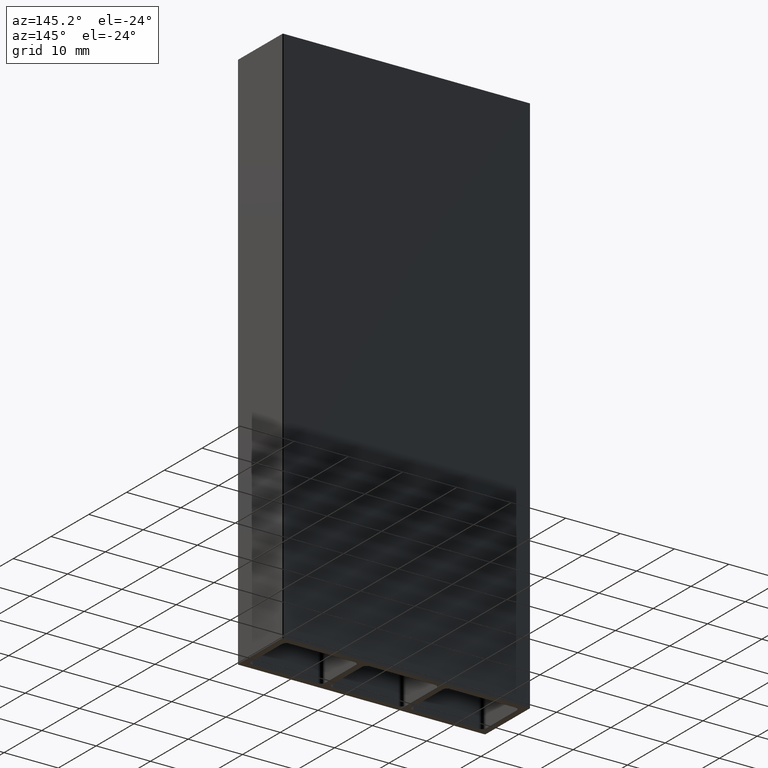
[diagram: clean part render]
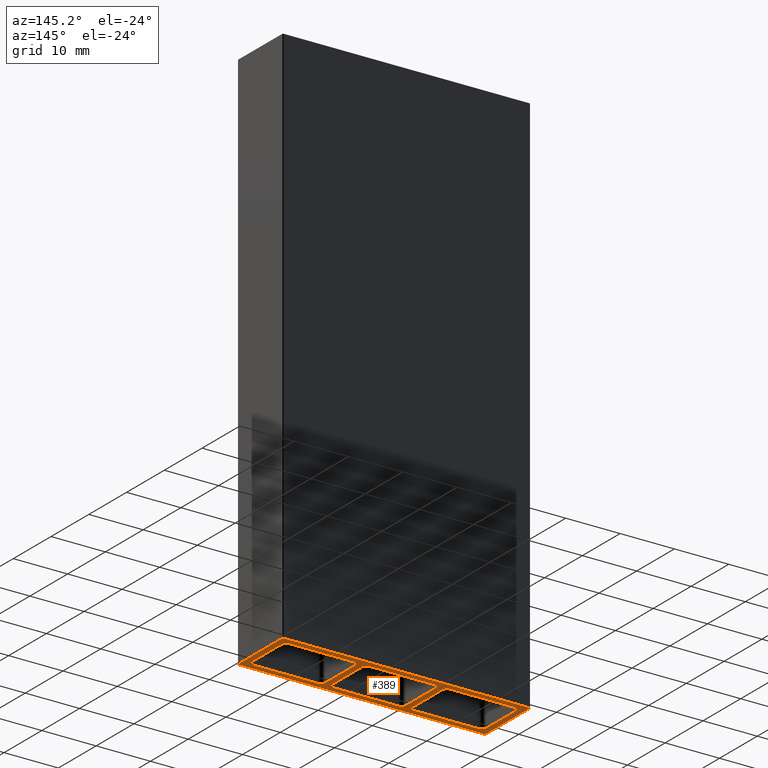
[diagram: same view with one face highlighted and labeled with its STEP entity id]
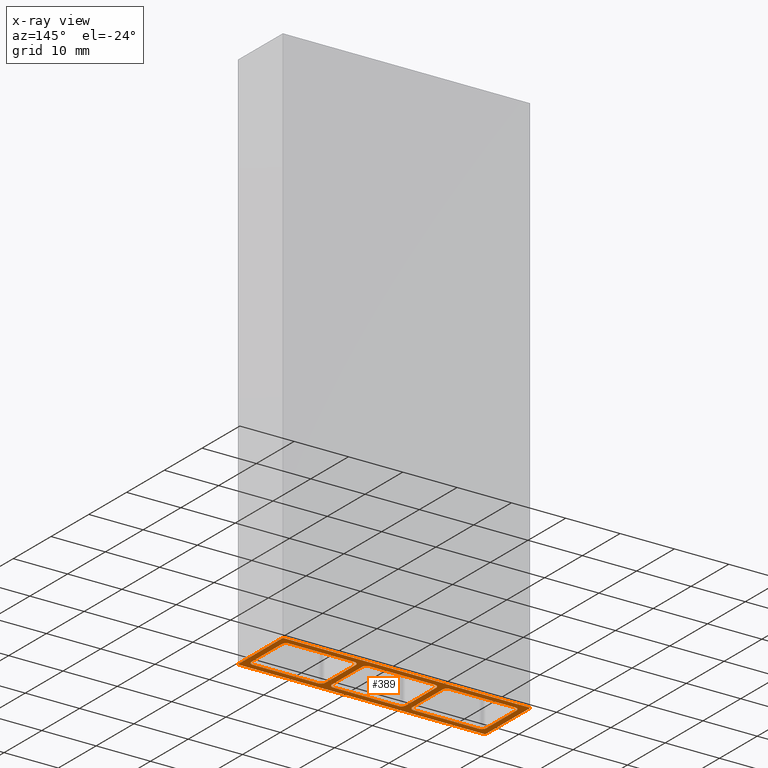
[diagram: x-ray of the same camera — body ghosted, the highlighted face saturated]
A machine part, auxiliary view. The second image highlights one B-rep face of the part: STEP entity #389.
The next image is the same camera in x-ray: the body ghosted, the highlighted face saturated — about 0% of this face is hidden behind the body in this view.
In plain terms, the highlighted planar face has unit normal (-0, 0, 1).
Its self-contained STEP definition (entity closure, byte-faithful):
#3 = LINE ( 'NONE', #851, #147 ) ;
#7 = ORIENTED_EDGE ( 'NONE', *, *, #16, .T. ) ;
#8 = CARTESIAN_POINT ( 'NONE',  ( -6.800000000000000700, 3.999999999999994200, -50.00000000000000000 ) ) ;
#10 = CARTESIAN_POINT ( 'NONE',  ( 7.999999999999998200, -3.999999999999995600, -50.00000000000000000 ) ) ;
#14 = ORIENTED_EDGE ( 'NONE', *, *, #394, .T. ) ;
#16 = EDGE_CURVE ( 'NONE', #585, #572, #796, .T. ) ;
#30 = EDGE_CURVE ( 'NONE', #348, #1021, #112, .T. ) ;
#44 = DIRECTION ( 'NONE',  ( -1.000000000000000000, 0.0000000000000000000, 0.0000000000000000000 ) ) ;
#47 = VERTEX_POINT ( 'NONE', #1048 ) ;
#53 = EDGE_CURVE ( 'NONE', #1042, #278, #709, .T. ) ;
#59 = AXIS2_PLACEMENT_3D ( 'NONE', #687, #124, #774 ) ;
#68 = EDGE_CURVE ( 'NONE', #1021, #1107, #211, .T. ) ;
#72 = DIRECTION ( 'NONE',  ( 1.000000000000000000, 0.0000000000000000000, 0.0000000000000000000 ) ) ;
#73 = VERTEX_POINT ( 'NONE', #254 ) ;
#74 = DIRECTION ( 'NONE',  ( 0.0000000000000000000, 0.0000000000000000000, 1.000000000000000000 ) ) ;
#76 = EDGE_CURVE ( 'NONE', #801, #47, #1047, .T. ) ;
#78 = ORIENTED_EDGE ( 'NONE', *, *, #696, .T. ) ;
#80 = DIRECTION ( 'NONE',  ( -0.0000000000000000000, 1.000000000000000000, -0.0000000000000000000 ) ) ;
#82 = VECTOR ( 'NONE', #1153, 1000.000000000000000 ) ;
#94 = PLANE ( 'NONE',  #673 ) ;
#98 = CARTESIAN_POINT ( 'NONE',  ( 6.800000000000000700, 3.999999999999994200, -50.00000000000000000 ) ) ;
#100 = CIRCLE ( 'NONE', #744, 0.8000000000000020400 ) ;
#104 = CARTESIAN_POINT ( 'NONE',  ( 8.000000000000000000, 3.999999999999994200, -50.00000000000000000 ) ) ;
#106 = EDGE_LOOP ( 'NONE', ( #78, #1101, #1002, #154, #1035, #508, #859, #1044 ) ) ;
#112 = CIRCLE ( 'NONE', #386, 0.8000000000000003800 ) ;
#116 = ORIENTED_EDGE ( 'NONE', *, *, #30, .T. ) ;
#120 = ORIENTED_EDGE ( 'NONE', *, *, #443, .T. ) ;
#124 = DIRECTION ( 'NONE',  ( 0.0000000000000000000, 0.0000000000000000000, 1.000000000000000000 ) ) ;
#125 = CIRCLE ( 'NONE', #310, 0.7999999999999951600 ) ;
#129 = ORIENTED_EDGE ( 'NONE', *, *, #149, .T. ) ;
#135 = EDGE_CURVE ( 'NONE', #957, #241, #374, .T. ) ;
#145 = VECTOR ( 'NONE', #915, 1000.000000000000000 ) ;
#146 = DIRECTION ( 'NONE',  ( 1.000000000000000000, 0.0000000000000000000, 0.0000000000000000000 ) ) ;
#147 = VECTOR ( 'NONE', #1015, 1000.000000000000000 ) ;
#148 = VECTOR ( 'NONE', #777, 1000.000000000000000 ) ;
#149 = EDGE_CURVE ( 'NONE', #1075, #514, #647, .T. ) ;
#154 = ORIENTED_EDGE ( 'NONE', *, *, #1031, .T. ) ;
#158 = CARTESIAN_POINT ( 'NONE',  ( 6.000000000000000000, 3.999999999999999100, -50.00000000000000000 ) ) ;
#159 = VERTEX_POINT ( 'NONE', #1122 ) ;
#161 = VERTEX_POINT ( 'NONE', #10 ) ;
#172 = EDGE_CURVE ( 'NONE', #1075, #399, #691, .T. ) ;
#184 = ORIENTED_EDGE ( 'NONE', *, *, #342, .T. ) ;
#186 = CARTESIAN_POINT ( 'NONE',  ( 35.59999999999999400, 4.799999999999999800, -50.00000000000000000 ) ) ;
#187 = DIRECTION ( 'NONE',  ( -1.000000000000000000, 0.0000000000000000000, 0.0000000000000000000 ) ) ;
#191 = DIRECTION ( 'NONE',  ( 1.000000000000000000, 0.0000000000000000000, 0.0000000000000000000 ) ) ;
#197 = CARTESIAN_POINT ( 'NONE',  ( -7.800000000000001600, -5.800000000000001600, -50.00000000000000000 ) ) ;
#211 = LINE ( 'NONE', #721, #145 ) ;
#219 = VECTOR ( 'NONE', #565, 1000.000000000000000 ) ;
#224 = DIRECTION ( 'NONE',  ( 0.0000000000000000000, 0.0000000000000000000, 1.000000000000000000 ) ) ;
#232 = CARTESIAN_POINT ( 'NONE',  ( 6.800000000000000700, 3.999999999999994200, -50.00000000000000000 ) ) ;
#233 = DIRECTION ( 'NONE',  ( 1.445602896647339200E-016, -1.000000000000000000, 0.0000000000000000000 ) ) ;
#235 = VERTEX_POINT ( 'NONE', #1142 ) ;
#241 = VERTEX_POINT ( 'NONE', #471 ) ;
#242 = CARTESIAN_POINT ( 'NONE',  ( 22.80000000000000100, 3.999999999999994200, -50.00000000000000000 ) ) ;
#245 = AXIS2_PLACEMENT_3D ( 'NONE', #513, #1151, #339 ) ;
#247 = CIRCLE ( 'NONE', #604, 0.1999999999999996500 ) ;
#254 = CARTESIAN_POINT ( 'NONE',  ( -7.800000000000000700, 5.999999999999999100, -50.00000000000000000 ) ) ;
#257 = CARTESIAN_POINT ( 'NONE',  ( 36.39999999999999900, 3.999999999999994200, -50.00000000000000000 ) ) ;
#258 = CARTESIAN_POINT ( 'NONE',  ( 5.999999999999996400, -4.800000000000001600, -50.00000000000000000 ) ) ;
#262 = DIRECTION ( 'NONE',  ( 1.000000000000000000, 0.0000000000000000000, 0.0000000000000000000 ) ) ;
#266 = VERTEX_POINT ( 'NONE', #273 ) ;
#269 = ORIENTED_EDGE ( 'NONE', *, *, #306, .T. ) ;
#273 = CARTESIAN_POINT ( 'NONE',  ( 36.39999999999999900, 3.999999999999994200, -50.00000000000000000 ) ) ;
#278 = VERTEX_POINT ( 'NONE', #466 ) ;
#285 = CARTESIAN_POINT ( 'NONE',  ( -5.999999999999998200, -4.000000000000000900, -50.00000000000000000 ) ) ;
#286 = CIRCLE ( 'NONE', #59, 0.8000000000000020400 ) ;
#290 = DIRECTION ( 'NONE',  ( 0.0000000000000000000, -0.0000000000000000000, -1.000000000000000000 ) ) ;
#295 = DIRECTION ( 'NONE',  ( -1.000000000000000000, 0.0000000000000000000, 0.0000000000000000000 ) ) ;
#298 = VERTEX_POINT ( 'NONE', #258 ) ;
#306 = EDGE_CURVE ( 'NONE', #235, #1042, #393, .T. ) ;
#309 = CIRCLE ( 'NONE', #797, 0.8000000000000020400 ) ;
#310 = AXIS2_PLACEMENT_3D ( 'NONE', #323, #817, #498 ) ;
#312 = LINE ( 'NONE', #606, #979 ) ;
#314 = VERTEX_POINT ( 'NONE', #1026 ) ;
#323 = CARTESIAN_POINT ( 'NONE',  ( 35.60000000000000900, -4.000000000000000900, -50.00000000000000000 ) ) ;
#327 = CARTESIAN_POINT ( 'NONE',  ( 22.80000000000000100, 3.999999999999994200, -50.00000000000000000 ) ) ;
#330 = LINE ( 'NONE', #439, #843 ) ;
#336 = AXIS2_PLACEMENT_3D ( 'NONE', #496, #1043, #1085 ) ;
#339 = DIRECTION ( 'NONE',  ( -1.000000000000000000, 0.0000000000000000000, 0.0000000000000000000 ) ) ;
#342 = EDGE_CURVE ( 'NONE', #957, #399, #601, .T. ) ;
#345 = EDGE_CURVE ( 'NONE', #1055, #911, #330, .T. ) ;
#346 = CIRCLE ( 'NONE', #619, 0.8000000000000003800 ) ;
#348 = VERTEX_POINT ( 'NONE', #1125 ) ;
#351 = DIRECTION ( 'NONE',  ( 1.000000000000000000, 0.0000000000000000000, 0.0000000000000000000 ) ) ;
#355 = ORIENTED_EDGE ( 'NONE', *, *, #904, .T. ) ;
#357 = EDGE_LOOP ( 'NONE', ( #116, #573, #1170, #120, #767, #269, #943, #1192 ) ) ;
#360 = CARTESIAN_POINT ( 'NONE',  ( 37.40000000000000600, 5.999999999999999100, -50.00000000000000000 ) ) ;
#368 = DIRECTION ( 'NONE',  ( 1.000000000000000000, 0.0000000000000000000, 0.0000000000000000000 ) ) ;
#370 = DIRECTION ( 'NONE',  ( -2.168404344971011600E-016, 1.000000000000000000, -0.0000000000000000000 ) ) ;
#373 = VECTOR ( 'NONE', #80, 1000.000000000000000 ) ;
#374 = LINE ( 'NONE', #998, #373 ) ;
#375 = CARTESIAN_POINT ( 'NONE',  ( -7.800000000000001600, -6.000000000000000900, -50.00000000000000000 ) ) ;
#386 = AXIS2_PLACEMENT_3D ( 'NONE', #536, #1179, #72 ) ;
#389 = ADVANCED_FACE ( 'NONE', ( #782, #616, #967, #806 ), #94, .F. ) ;
#391 = EDGE_CURVE ( 'NONE', #1029, #73, #247, .T. ) ;
#393 = LINE ( 'NONE', #232, #1146 ) ;
#394 = EDGE_CURVE ( 'NONE', #424, #266, #555, .T. ) ;
#399 = VERTEX_POINT ( 'NONE', #663 ) ;
#401 = AXIS2_PLACEMENT_3D ( 'NONE', #451, #534, #725 ) ;
#406 = CARTESIAN_POINT ( 'NONE',  ( 21.60000000000000100, 3.999999999999994200, -50.00000000000000000 ) ) ;
#410 = EDGE_CURVE ( 'NONE', #266, #1055, #309, .T. ) ;
#420 = CIRCLE ( 'NONE', #582, 0.8000000000000020400 ) ;
#424 = VERTEX_POINT ( 'NONE', #962 ) ;
#439 = CARTESIAN_POINT ( 'NONE',  ( 23.60000000000000500, 4.799999999999999800, -50.00000000000000000 ) ) ;
#443 = EDGE_CURVE ( 'NONE', #637, #298, #3, .T. ) ;
#446 = EDGE_CURVE ( 'NONE', #1107, #637, #963, .T. ) ;
#449 = ORIENTED_EDGE ( 'NONE', *, *, #657, .T. ) ;
#450 = EDGE_CURVE ( 'NONE', #161, #1201, #842, .T. ) ;
#451 = CARTESIAN_POINT ( 'NONE',  ( 23.60000000000000100, -4.000000000000000900, -50.00000000000000000 ) ) ;
#463 = VERTEX_POINT ( 'NONE', #650 ) ;
#466 = CARTESIAN_POINT ( 'NONE',  ( 5.999999999999994700, 4.799999999999999800, -50.00000000000000000 ) ) ;
#467 = DIRECTION ( 'NONE',  ( -0.0000000000000000000, 0.0000000000000000000, 1.000000000000000000 ) ) ;
#471 = CARTESIAN_POINT ( 'NONE',  ( 37.60000000000000100, 5.799999999999999800, -50.00000000000000000 ) ) ;
#473 = EDGE_CURVE ( 'NONE', #853, #73, #312, .T. ) ;
#477 = CARTESIAN_POINT ( 'NONE',  ( 23.60000000000000900, -4.800000000000001600, -50.00000000000000000 ) ) ;
#480 = DIRECTION ( 'NONE',  ( 1.000000000000000000, 0.0000000000000000000, 0.0000000000000000000 ) ) ;
#485 = CARTESIAN_POINT ( 'NONE',  ( 8.799999999999998900, -4.000000000000000900, -50.00000000000000000 ) ) ;
#496 = CARTESIAN_POINT ( 'NONE',  ( 37.40000000000000600, 5.799999999999999800, -50.00000000000000000 ) ) ;
#498 = DIRECTION ( 'NONE',  ( -1.000000000000000000, 0.0000000000000000000, 0.0000000000000000000 ) ) ;
#499 = VECTOR ( 'NONE', #780, 1000.000000000000000 ) ;
#505 = AXIS2_PLACEMENT_3D ( 'NONE', #158, #818, #187 ) ;
#508 = ORIENTED_EDGE ( 'NONE', *, *, #632, .T. ) ;
#510 = EDGE_CURVE ( 'NONE', #885, #1058, #1198, .T. ) ;
#513 = CARTESIAN_POINT ( 'NONE',  ( 6.000000000000001800, -4.000000000000000900, -50.00000000000000000 ) ) ;
#514 = VERTEX_POINT ( 'NONE', #750 ) ;
#534 = DIRECTION ( 'NONE',  ( 0.0000000000000000000, 0.0000000000000000000, 1.000000000000000000 ) ) ;
#535 = LINE ( 'NONE', #905, #1020 ) ;
#536 = CARTESIAN_POINT ( 'NONE',  ( -6.000000000000000000, 4.000000000000000000, -50.00000000000000000 ) ) ;
#552 = ORIENTED_EDGE ( 'NONE', *, *, #172, .F. ) ;
#555 = LINE ( 'NONE', #257, #499 ) ;
#565 = DIRECTION ( 'NONE',  ( 1.000000000000000000, 0.0000000000000000000, 0.0000000000000000000 ) ) ;
#569 = DIRECTION ( 'NONE',  ( 0.0000000000000000000, 0.0000000000000000000, 1.000000000000000000 ) ) ;
#570 = AXIS2_PLACEMENT_3D ( 'NONE', #197, #728, #785 ) ;
#572 = VERTEX_POINT ( 'NONE', #968 ) ;
#573 = ORIENTED_EDGE ( 'NONE', *, *, #68, .T. ) ;
#578 = ORIENTED_EDGE ( 'NONE', *, *, #761, .T. ) ;
#582 = AXIS2_PLACEMENT_3D ( 'NONE', #790, #224, #597 ) ;
#585 = VERTEX_POINT ( 'NONE', #242 ) ;
#597 = DIRECTION ( 'NONE',  ( -1.000000000000000000, 0.0000000000000000000, 0.0000000000000000000 ) ) ;
#601 = CIRCLE ( 'NONE', #1185, 0.1999999999999987900 ) ;
#604 = AXIS2_PLACEMENT_3D ( 'NONE', #982, #820, #351 ) ;
#606 = CARTESIAN_POINT ( 'NONE',  ( -8.000000000000000000, 5.999999999999999100, -50.00000000000000000 ) ) ;
#616 = FACE_OUTER_BOUND ( 'NONE', #883, .T. ) ;
#619 = AXIS2_PLACEMENT_3D ( 'NONE', #930, #946, #368 ) ;
#621 = DIRECTION ( 'NONE',  ( -1.000000000000000000, -0.0000000000000000000, -0.0000000000000000000 ) ) ;
#622 = ORIENTED_EDGE ( 'NONE', *, *, #653, .T. ) ;
#632 = EDGE_CURVE ( 'NONE', #1201, #1143, #812, .T. ) ;
#634 = CARTESIAN_POINT ( 'NONE',  ( -5.999999999999992900, -4.800000000000001600, -50.00000000000000000 ) ) ;
#637 = VERTEX_POINT ( 'NONE', #634 ) ;
#638 = CARTESIAN_POINT ( 'NONE',  ( 20.79999999999999700, 4.799999999999999800, -50.00000000000000000 ) ) ;
#647 = CIRCLE ( 'NONE', #570, 0.1999999999999996500 ) ;
#648 = CARTESIAN_POINT ( 'NONE',  ( -6.799999999999998900, -3.999999999999995600, -50.00000000000000000 ) ) ;
#650 = CARTESIAN_POINT ( 'NONE',  ( 20.79999999999999700, 4.799999999999999800, -50.00000000000000000 ) ) ;
#652 = CARTESIAN_POINT ( 'NONE',  ( 23.60000000000000900, -4.800000000000001600, -50.00000000000000000 ) ) ;
#653 = EDGE_CURVE ( 'NONE', #572, #801, #1147, .T. ) ;
#657 = EDGE_CURVE ( 'NONE', #853, #241, #749, .T. ) ;
#663 = CARTESIAN_POINT ( 'NONE',  ( 37.40000000000000600, -6.000000000000000900, -50.00000000000000000 ) ) ;
#673 = AXIS2_PLACEMENT_3D ( 'NONE', #926, #467, #146 ) ;
#687 = CARTESIAN_POINT ( 'NONE',  ( 23.60000000000000100, 4.000000000000000000, -50.00000000000000000 ) ) ;
#691 = LINE ( 'NONE', #1009, #219 ) ;
#696 = EDGE_CURVE ( 'NONE', #1058, #463, #420, .T. ) ;
#709 = CIRCLE ( 'NONE', #505, 0.8000000000000003800 ) ;
#721 = CARTESIAN_POINT ( 'NONE',  ( -6.800000000000000700, 3.999999999999994200, -50.00000000000000000 ) ) ;
#725 = DIRECTION ( 'NONE',  ( -1.000000000000000000, 0.0000000000000000000, 0.0000000000000000000 ) ) ;
#728 = DIRECTION ( 'NONE',  ( 0.0000000000000000000, -0.0000000000000000000, -1.000000000000000000 ) ) ;
#729 = AXIS2_PLACEMENT_3D ( 'NONE', #285, #1165, #44 ) ;
#731 = CARTESIAN_POINT ( 'NONE',  ( 20.79999999999999400, -4.800000000000001600, -50.00000000000000000 ) ) ;
#735 = CIRCLE ( 'NONE', #245, 0.8000000000000003800 ) ;
#740 = EDGE_LOOP ( 'NONE', ( #578, #7, #622, #878, #355, #14, #802, #997 ) ) ;
#742 = CARTESIAN_POINT ( 'NONE',  ( 37.40000000000000600, -5.800000000000002500, -50.00000000000000000 ) ) ;
#743 = CARTESIAN_POINT ( 'NONE',  ( 21.60000000000000100, 3.999999999999994200, -50.00000000000000000 ) ) ;
#744 = AXIS2_PLACEMENT_3D ( 'NONE', #1124, #569, #480 ) ;
#749 = CIRCLE ( 'NONE', #336, 0.1999999999999987900 ) ;
#750 = CARTESIAN_POINT ( 'NONE',  ( -7.999999999999998200, -5.800000000000002500, -50.00000000000000000 ) ) ;
#756 = DIRECTION ( 'NONE',  ( -1.000000000000000000, 0.0000000000000000000, 0.0000000000000000000 ) ) ;
#761 = EDGE_CURVE ( 'NONE', #911, #585, #286, .T. ) ;
#767 = ORIENTED_EDGE ( 'NONE', *, *, #783, .T. ) ;
#774 = DIRECTION ( 'NONE',  ( 1.000000000000000000, 0.0000000000000000000, 0.0000000000000000000 ) ) ;
#776 = VECTOR ( 'NONE', #1144, 1000.000000000000000 ) ;
#777 = DIRECTION ( 'NONE',  ( 1.000000000000000000, 0.0000000000000000000, 0.0000000000000000000 ) ) ;
#780 = DIRECTION ( 'NONE',  ( -0.0000000000000000000, 1.000000000000000000, -0.0000000000000000000 ) ) ;
#782 = FACE_BOUND ( 'NONE', #106, .T. ) ;
#783 = EDGE_CURVE ( 'NONE', #298, #235, #735, .T. ) ;
#785 = DIRECTION ( 'NONE',  ( 1.000000000000000000, 0.0000000000000000000, 0.0000000000000000000 ) ) ;
#789 = ORIENTED_EDGE ( 'NONE', *, *, #135, .F. ) ;
#790 = CARTESIAN_POINT ( 'NONE',  ( 20.80000000000000100, 4.000000000000000000, -50.00000000000000000 ) ) ;
#796 = LINE ( 'NONE', #327, #82 ) ;
#797 = AXIS2_PLACEMENT_3D ( 'NONE', #1094, #74, #756 ) ;
#799 = LINE ( 'NONE', #638, #844 ) ;
#801 = VERTEX_POINT ( 'NONE', #477 ) ;
#802 = ORIENTED_EDGE ( 'NONE', *, *, #410, .T. ) ;
#803 = EDGE_CURVE ( 'NONE', #1029, #514, #535, .T. ) ;
#806 = FACE_BOUND ( 'NONE', #740, .T. ) ;
#812 = LINE ( 'NONE', #1141, #965 ) ;
#817 = DIRECTION ( 'NONE',  ( 0.0000000000000000000, 0.0000000000000000000, 1.000000000000000000 ) ) ;
#818 = DIRECTION ( 'NONE',  ( 0.0000000000000000000, 0.0000000000000000000, 1.000000000000000000 ) ) ;
#820 = DIRECTION ( 'NONE',  ( 0.0000000000000000000, -0.0000000000000000000, -1.000000000000000000 ) ) ;
#824 = DIRECTION ( 'NONE',  ( 1.000000000000000000, -0.0000000000000000000, -0.0000000000000000000 ) ) ;
#842 = CIRCLE ( 'NONE', #917, 0.8000000000000003800 ) ;
#843 = VECTOR ( 'NONE', #621, 1000.000000000000000 ) ;
#844 = VECTOR ( 'NONE', #295, 1000.000000000000000 ) ;
#848 = ORIENTED_EDGE ( 'NONE', *, *, #391, .T. ) ;
#849 = CARTESIAN_POINT ( 'NONE',  ( -8.000000000000000000, 5.799999999999999800, -50.00000000000000000 ) ) ;
#851 = CARTESIAN_POINT ( 'NONE',  ( -5.999999999999992900, -4.800000000000001600, -50.00000000000000000 ) ) ;
#853 = VERTEX_POINT ( 'NONE', #360 ) ;
#854 = CARTESIAN_POINT ( 'NONE',  ( 37.60000000000000100, -5.800000000000002500, -50.00000000000000000 ) ) ;
#859 = ORIENTED_EDGE ( 'NONE', *, *, #1003, .T. ) ;
#876 = ORIENTED_EDGE ( 'NONE', *, *, #803, .F. ) ;
#878 = ORIENTED_EDGE ( 'NONE', *, *, #76, .T. ) ;
#882 = LINE ( 'NONE', #104, #1008 ) ;
#883 = EDGE_LOOP ( 'NONE', ( #789, #184, #552, #129, #876, #848, #1027, #449 ) ) ;
#885 = VERTEX_POINT ( 'NONE', #916 ) ;
#904 = EDGE_CURVE ( 'NONE', #47, #424, #125, .T. ) ;
#905 = CARTESIAN_POINT ( 'NONE',  ( -8.000000000000000000, 5.999999999999999100, -50.00000000000000000 ) ) ;
#909 = VECTOR ( 'NONE', #928, 1000.000000000000000 ) ;
#911 = VERTEX_POINT ( 'NONE', #1173 ) ;
#915 = DIRECTION ( 'NONE',  ( 2.168404344971011600E-016, -1.000000000000000000, 0.0000000000000000000 ) ) ;
#916 = CARTESIAN_POINT ( 'NONE',  ( 21.60000000000000100, -3.999999999999995600, -50.00000000000000000 ) ) ;
#917 = AXIS2_PLACEMENT_3D ( 'NONE', #485, #1032, #262 ) ;
#925 = EDGE_CURVE ( 'NONE', #159, #314, #346, .T. ) ;
#926 = CARTESIAN_POINT ( 'NONE',  ( -7.999999999999998200, -6.000000000000000900, -50.00000000000000000 ) ) ;
#928 = DIRECTION ( 'NONE',  ( -1.000000000000000000, -0.0000000000000000000, -0.0000000000000000000 ) ) ;
#930 = CARTESIAN_POINT ( 'NONE',  ( 8.800000000000000700, 3.999999999999999100, -50.00000000000000000 ) ) ;
#943 = ORIENTED_EDGE ( 'NONE', *, *, #53, .T. ) ;
#946 = DIRECTION ( 'NONE',  ( 0.0000000000000000000, 0.0000000000000000000, 1.000000000000000000 ) ) ;
#947 = EDGE_CURVE ( 'NONE', #463, #159, #799, .T. ) ;
#957 = VERTEX_POINT ( 'NONE', #854 ) ;
#962 = CARTESIAN_POINT ( 'NONE',  ( 36.39999999999999900, -3.999999999999995600, -50.00000000000000000 ) ) ;
#963 = CIRCLE ( 'NONE', #729, 0.8000000000000003800 ) ;
#965 = VECTOR ( 'NONE', #824, 1000.000000000000000 ) ;
#967 = FACE_BOUND ( 'NONE', #357, .T. ) ;
#968 = CARTESIAN_POINT ( 'NONE',  ( 22.80000000000000100, -3.999999999999995600, -50.00000000000000000 ) ) ;
#979 = VECTOR ( 'NONE', #1014, 1000.000000000000000 ) ;
#982 = CARTESIAN_POINT ( 'NONE',  ( -7.800000000000000700, 5.799999999999999800, -50.00000000000000000 ) ) ;
#997 = ORIENTED_EDGE ( 'NONE', *, *, #345, .T. ) ;
#998 = CARTESIAN_POINT ( 'NONE',  ( 37.60000000000000100, 5.999999999999999100, -50.00000000000000000 ) ) ;
#1002 = ORIENTED_EDGE ( 'NONE', *, *, #925, .T. ) ;
#1003 = EDGE_CURVE ( 'NONE', #1143, #885, #100, .T. ) ;
#1008 = VECTOR ( 'NONE', #1019, 1000.000000000000000 ) ;
#1009 = CARTESIAN_POINT ( 'NONE',  ( 8.000000000000000000, -6.000000000000000900, -50.00000000000000000 ) ) ;
#1014 = DIRECTION ( 'NONE',  ( -1.000000000000000000, -0.0000000000000000000, -0.0000000000000000000 ) ) ;
#1015 = DIRECTION ( 'NONE',  ( 1.000000000000000000, 0.0000000000000000000, 0.0000000000000000000 ) ) ;
#1019 = DIRECTION ( 'NONE',  ( -2.168404344971011600E-016, -1.000000000000000000, 0.0000000000000000000 ) ) ;
#1020 = VECTOR ( 'NONE', #233, 1000.000000000000000 ) ;
#1021 = VERTEX_POINT ( 'NONE', #8 ) ;
#1026 = CARTESIAN_POINT ( 'NONE',  ( 8.000000000000000000, 3.999999999999994200, -50.00000000000000000 ) ) ;
#1027 = ORIENTED_EDGE ( 'NONE', *, *, #473, .F. ) ;
#1029 = VERTEX_POINT ( 'NONE', #849 ) ;
#1031 = EDGE_CURVE ( 'NONE', #314, #161, #882, .T. ) ;
#1032 = DIRECTION ( 'NONE',  ( 0.0000000000000000000, 0.0000000000000000000, 1.000000000000000000 ) ) ;
#1035 = ORIENTED_EDGE ( 'NONE', *, *, #450, .T. ) ;
#1039 = LINE ( 'NONE', #1204, #909 ) ;
#1042 = VERTEX_POINT ( 'NONE', #98 ) ;
#1043 = DIRECTION ( 'NONE',  ( 0.0000000000000000000, -0.0000000000000000000, -1.000000000000000000 ) ) ;
#1044 = ORIENTED_EDGE ( 'NONE', *, *, #510, .T. ) ;
#1047 = LINE ( 'NONE', #652, #148 ) ;
#1048 = CARTESIAN_POINT ( 'NONE',  ( 35.60000000000000100, -4.799999999999998900, -50.00000000000000000 ) ) ;
#1055 = VERTEX_POINT ( 'NONE', #186 ) ;
#1058 = VERTEX_POINT ( 'NONE', #743 ) ;
#1062 = EDGE_CURVE ( 'NONE', #278, #348, #1039, .T. ) ;
#1069 = CARTESIAN_POINT ( 'NONE',  ( 8.800000000000004300, -4.800000000000001600, -50.00000000000000000 ) ) ;
#1075 = VERTEX_POINT ( 'NONE', #375 ) ;
#1085 = DIRECTION ( 'NONE',  ( 1.000000000000000000, 0.0000000000000000000, 0.0000000000000000000 ) ) ;
#1094 = CARTESIAN_POINT ( 'NONE',  ( 35.60000000000000100, 3.999999999999999100, -50.00000000000000000 ) ) ;
#1101 = ORIENTED_EDGE ( 'NONE', *, *, #947, .T. ) ;
#1107 = VERTEX_POINT ( 'NONE', #648 ) ;
#1122 = CARTESIAN_POINT ( 'NONE',  ( 8.800000000000006000, 4.799999999999999800, -50.00000000000000000 ) ) ;
#1124 = CARTESIAN_POINT ( 'NONE',  ( 20.80000000000000100, -4.000000000000000900, -50.00000000000000000 ) ) ;
#1125 = CARTESIAN_POINT ( 'NONE',  ( -5.999999999999994700, 4.799999999999999800, -50.00000000000000000 ) ) ;
#1141 = CARTESIAN_POINT ( 'NONE',  ( 20.79999999999999400, -4.800000000000001600, -50.00000000000000000 ) ) ;
#1142 = CARTESIAN_POINT ( 'NONE',  ( 6.800000000000002500, -3.999999999999995600, -50.00000000000000000 ) ) ;
#1143 = VERTEX_POINT ( 'NONE', #731 ) ;
#1144 = DIRECTION ( 'NONE',  ( -0.0000000000000000000, 1.000000000000000000, -0.0000000000000000000 ) ) ;
#1146 = VECTOR ( 'NONE', #370, 1000.000000000000000 ) ;
#1147 = CIRCLE ( 'NONE', #401, 0.8000000000000020400 ) ;
#1151 = DIRECTION ( 'NONE',  ( 0.0000000000000000000, 0.0000000000000000000, 1.000000000000000000 ) ) ;
#1153 = DIRECTION ( 'NONE',  ( 0.0000000000000000000, -1.000000000000000000, 0.0000000000000000000 ) ) ;
#1165 = DIRECTION ( 'NONE',  ( 0.0000000000000000000, 0.0000000000000000000, 1.000000000000000000 ) ) ;
#1170 = ORIENTED_EDGE ( 'NONE', *, *, #446, .T. ) ;
#1173 = CARTESIAN_POINT ( 'NONE',  ( 23.60000000000000100, 4.799999999999999800, -50.00000000000000000 ) ) ;
#1179 = DIRECTION ( 'NONE',  ( 0.0000000000000000000, 0.0000000000000000000, 1.000000000000000000 ) ) ;
#1185 = AXIS2_PLACEMENT_3D ( 'NONE', #742, #290, #191 ) ;
#1192 = ORIENTED_EDGE ( 'NONE', *, *, #1062, .T. ) ;
#1198 = LINE ( 'NONE', #406, #776 ) ;
#1201 = VERTEX_POINT ( 'NONE', #1069 ) ;
#1204 = CARTESIAN_POINT ( 'NONE',  ( -5.999999999999994700, 4.799999999999999800, -50.00000000000000000 ) ) ;